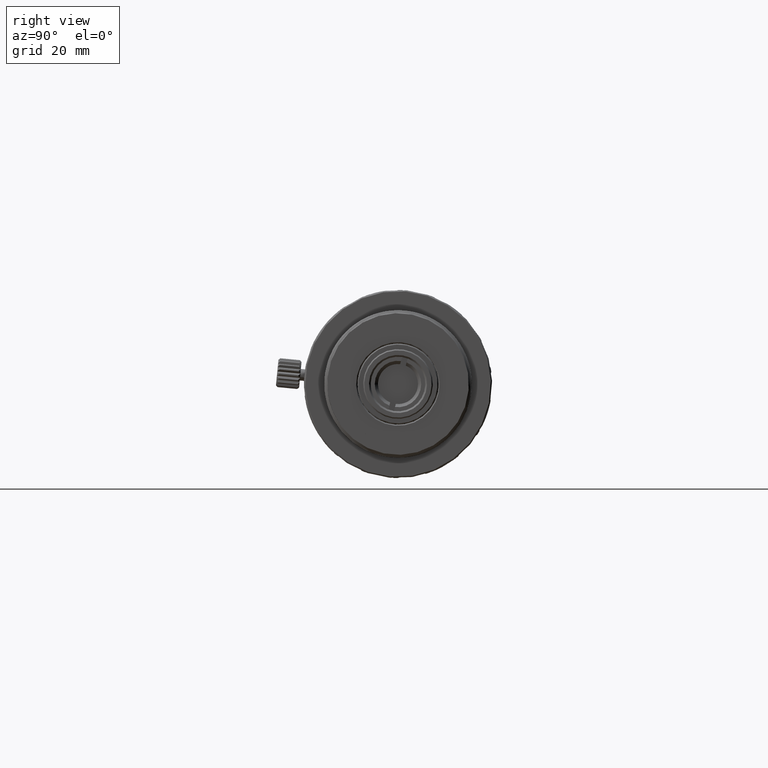
[diagram: clean part render]
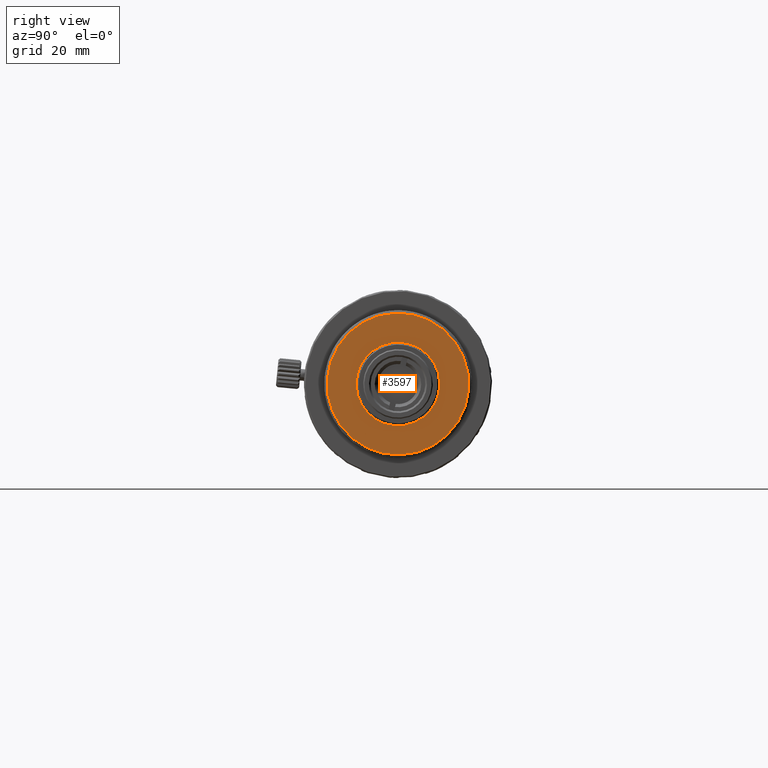
[diagram: same view with one face highlighted and labeled with its STEP entity id]
A machine part, right view. The second image highlights one B-rep face of the part: STEP entity #3597.
In plain terms, the highlighted planar face has unit normal (-1, -0, -0).
Its self-contained STEP definition (entity closure, byte-faithful):
#802 = CIRCLE ( 'NONE', #5598, 12.20000000000226414 ) ;
#2646 = VERTEX_POINT ( 'NONE', #8262 ) ;
#3353 = CIRCLE ( 'NONE', #8114, 7.200000000001200107 ) ;
#3597 = ADVANCED_FACE ( 'NONE', ( #22425, #15187 ), #18675, .F. ) ;
#3943 = DIRECTION ( 'NONE',  ( -5.687617954021262530E-16, 0.9475139321432336503, -0.3197144794882891827 ) ) ;
#5560 = CARTESIAN_POINT ( 'NONE',  ( 59.46425907758291629, -1.265596703952525104, 73.43615199999769061 ) ) ;
#5598 = AXIS2_PLACEMENT_3D ( 'NONE', #5560, #7313, #3943 ) ;
#7214 = DIRECTION ( 'NONE',  ( -1.000000000000000000, -1.034783754618809334E-15, -9.648539361057638545E-17 ) ) ;
#7313 = DIRECTION ( 'NONE',  ( -1.000000000000000000, -9.053605528940810685E-16, -1.401559615773534679E-16 ) ) ;
#8114 = AXIS2_PLACEMENT_3D ( 'NONE', #19068, #18701, #16976 ) ;
#8262 = CARTESIAN_POINT ( 'NONE',  ( 59.46425907758291629, 1.036347548363542037, 80.25825231143011251 ) ) ;
#8523 = CARTESIAN_POINT ( 'NONE',  ( 59.46425907758290919, 10.29407326819707080, 69.53563535023982922 ) ) ;
#10010 = EDGE_CURVE ( 'NONE', #16144, #16144, #802, .T. ) ;
#10189 = AXIS2_PLACEMENT_3D ( 'NONE', #19165, #7214, #11191 ) ;
#11191 = DIRECTION ( 'NONE',  ( 4.222566041852349263E-16, -0.3197144794882891272, -0.9475139321432336503 ) ) ;
#12178 = ORIENTED_EDGE ( 'NONE', *, *, #10010, .F. ) ;
#15187 = FACE_BOUND ( 'NONE', #20028, .T. ) ;
#16144 = VERTEX_POINT ( 'NONE', #8523 ) ;
#16976 = DIRECTION ( 'NONE',  ( 0.000000000000000000, 0.3197144794882893493, 0.9475139321432336503 ) ) ;
#18675 = PLANE ( 'NONE',  #10189 ) ;
#18701 = DIRECTION ( 'NONE',  ( 1.000000000000000000, 1.034783754618809334E-15, 9.648539361057629917E-17 ) ) ;
#19068 = CARTESIAN_POINT ( 'NONE',  ( 59.46425907758291629, -1.265596703952525104, 73.43615199999769061 ) ) ;
#19165 = CARTESIAN_POINT ( 'NONE',  ( 59.46425907758291629, -1.265596703952525104, 73.43615199999769061 ) ) ;
#20028 = EDGE_LOOP ( 'NONE', ( #23793 ) ) ;
#21938 = EDGE_LOOP ( 'NONE', ( #12178 ) ) ;
#22183 = EDGE_CURVE ( 'NONE', #2646, #2646, #3353, .T. ) ;
#22425 = FACE_OUTER_BOUND ( 'NONE', #21938, .T. ) ;
#23793 = ORIENTED_EDGE ( 'NONE', *, *, #22183, .F. ) ;